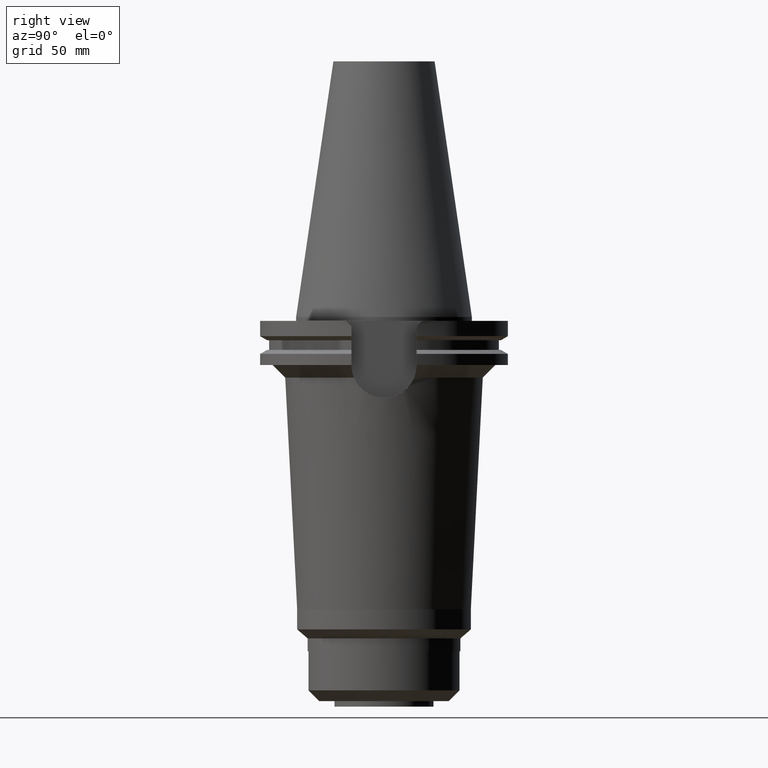
[diagram: clean part render]
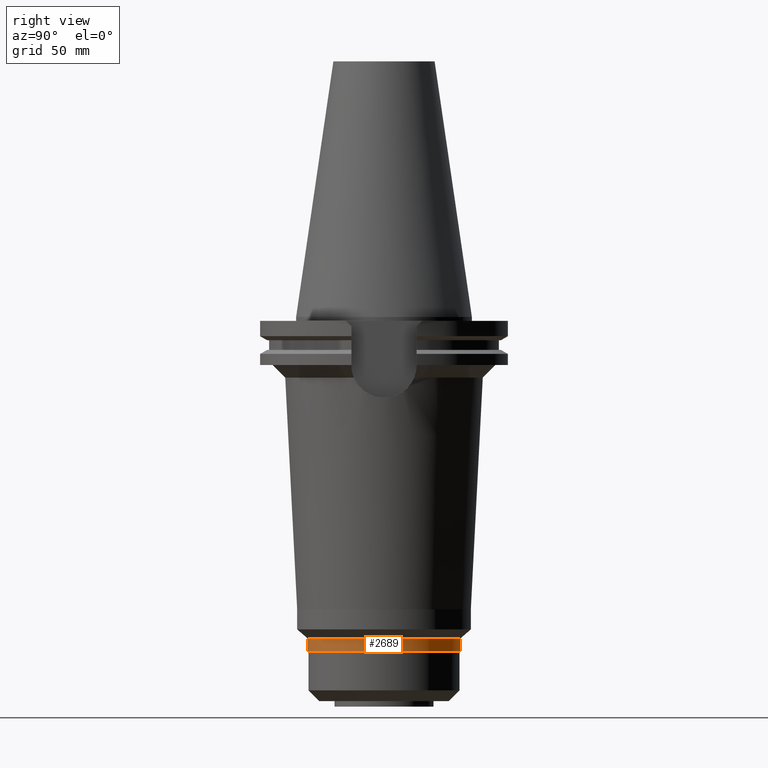
[diagram: same view with one face highlighted and labeled with its STEP entity id]
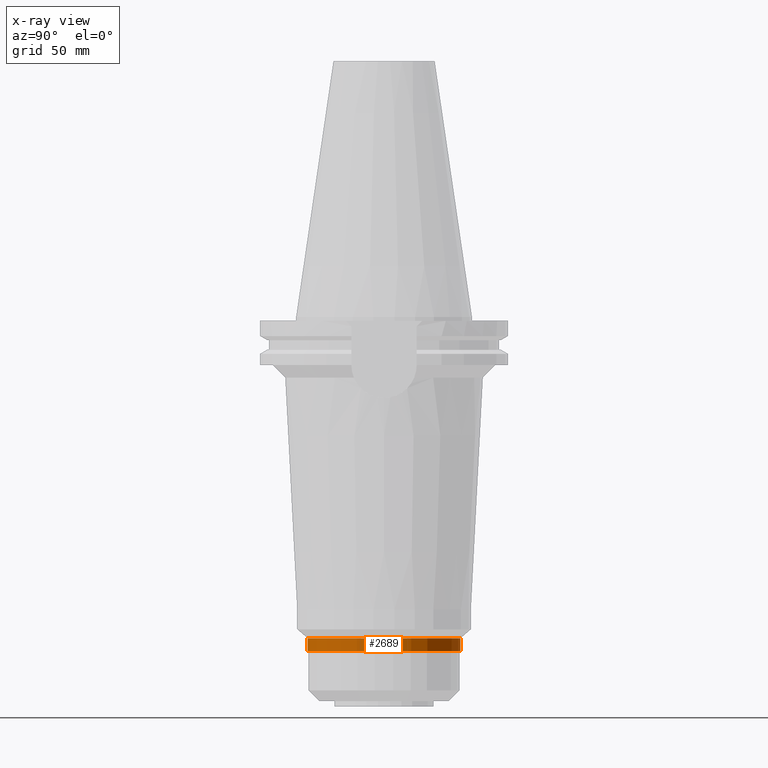
[diagram: x-ray of the same camera — body ghosted, the highlighted face saturated]
A machine part, right view. The second image highlights one B-rep face of the part: STEP entity #2689.
The next image is the same camera in x-ray: the body ghosted, the highlighted face saturated — about 0% of this face is hidden behind the body in this view.
In plain terms, the highlighted cylindrical surface (partial cylindrical patch) has radius 30.35 mm, axis along (0, 0, -1).
Its self-contained STEP definition (entity closure, byte-faithful):
#1155=CARTESIAN_POINT('',(0.E0,-1.541566899785E-14,-1.276569801935E2));
#1156=DIRECTION('',(0.E0,0.E0,-1.E0));
#1157=DIRECTION('',(0.E0,1.E0,0.E0));
#1158=AXIS2_PLACEMENT_3D('',#1155,#1156,#1157);
#1194=DIRECTION('',(0.E0,-3.340629435045E-12,-1.E0));
#1195=VECTOR('',#1194,5.143019806520E0);
#1196=CARTESIAN_POINT('',(0.E0,-3.034999999998E1,-1.276569801935E2));
#1197=LINE('',#1196,#1195);
#1201=DIRECTION('',(0.E0,3.342011002222E-12,-1.E0));
#1202=VECTOR('',#1201,5.143019806520E0);
#1203=CARTESIAN_POINT('',(0.E0,3.034999999998E1,-1.276569801935E2));
#1204=LINE('',#1203,#1202);
#1208=CARTESIAN_POINT('',(0.E0,1.401240867584E-14,-1.328E2));
#1209=DIRECTION('',(0.E0,0.E0,1.E0));
#1210=DIRECTION('',(0.E0,-1.E0,0.E0));
#1211=AXIS2_PLACEMENT_3D('',#1208,#1209,#1210);
#1658=CARTESIAN_POINT('',(0.E0,-3.035E1,-1.328E2));
#1659=CARTESIAN_POINT('',(0.E0,3.035E1,-1.328E2));
#1660=VERTEX_POINT('',#1658);
#1661=VERTEX_POINT('',#1659);
#1662=CARTESIAN_POINT('',(0.E0,3.034999999998E1,-1.276569801935E2));
#1663=VERTEX_POINT('',#1662);
#1664=CARTESIAN_POINT('',(0.E0,-3.034999999998E1,-1.276569801935E2));
#1665=VERTEX_POINT('',#1664);
#2677=CARTESIAN_POINT('',(0.E0,1.401240867584E-14,1.1442E2));
#2678=DIRECTION('',(0.E0,0.E0,-1.E0));
#2679=DIRECTION('',(0.E0,-1.E0,0.E0));
#2680=AXIS2_PLACEMENT_3D('',#2677,#2678,#2679);
#2681=CYLINDRICAL_SURFACE('',#2680,3.035E1);
#2682=ORIENTED_EDGE('',*,*,#2667,.T.);
#2684=ORIENTED_EDGE('',*,*,#2683,.F.);
#2685=ORIENTED_EDGE('',*,*,#2670,.F.);
#2686=ORIENTED_EDGE('',*,*,#2641,.F.);
#2687=EDGE_LOOP('',(#2682,#2684,#2685,#2686));
#2688=FACE_OUTER_BOUND('',#2687,.F.);
#1159=CIRCLE('',#1158,3.034999999997E1);
#1212=CIRCLE('',#1211,3.035E1);
#2641=EDGE_CURVE('',#1663,#1665,#1159,.T.);
#2667=EDGE_CURVE('',#1663,#1661,#1204,.T.);
#2670=EDGE_CURVE('',#1665,#1660,#1197,.T.);
#2683=EDGE_CURVE('',#1660,#1661,#1212,.T.);
#2689=ADVANCED_FACE('',(#2688),#2681,.T.);